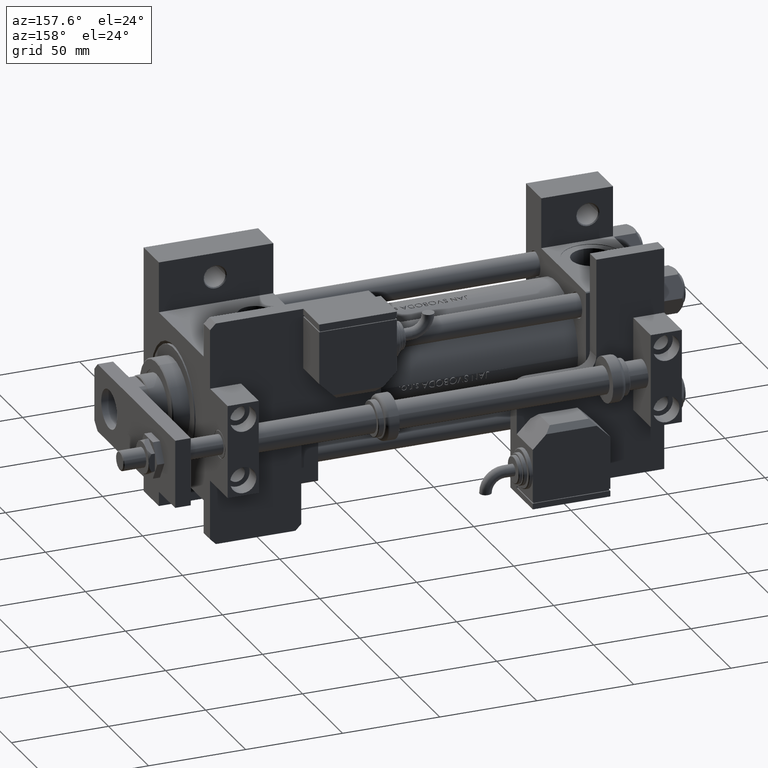
[diagram: clean part render]
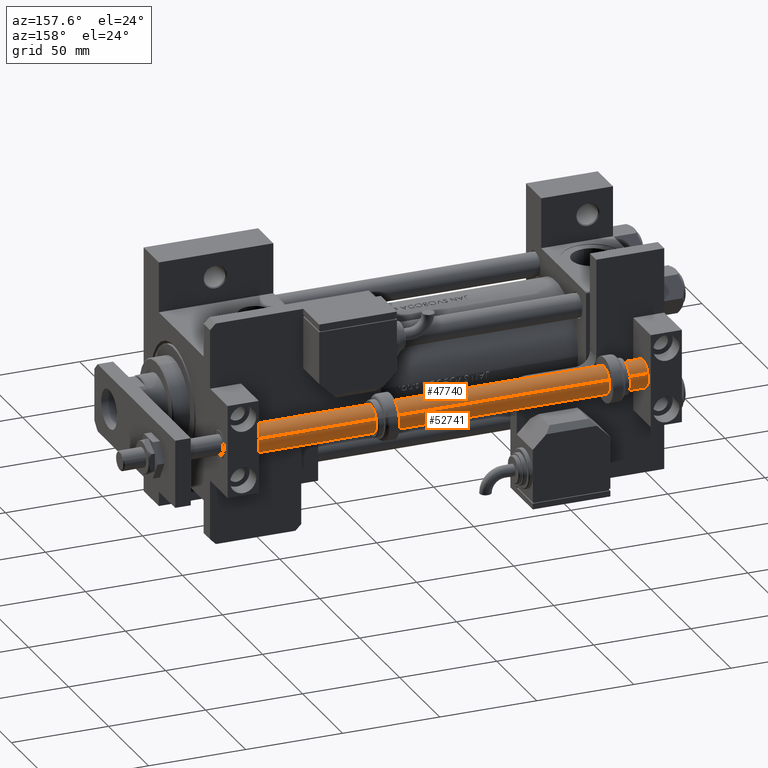
[diagram: same view with one multi-face feature highlighted, each face labeled with its STEP entity id]
A machine part, auxiliary view. The highlighted faces form ONE feature: a constant-radius fillet chain: 2 tangent blend faces with common blend radius 7 mm. The faces share edges in the B-rep.
Their STEP definitions:
[1] entity #52741 (Cylinder):
#422 = VERTEX_POINT ( 'NONE', #30283 ) ;
#830 = VERTEX_POINT ( 'NONE', #24188 ) ;
#3577 = DIRECTION ( 'NONE',  ( -0.000000000000000000, -0.000000000000000000, 1.000000000000000000 ) ) ;
#8786 = DIRECTION ( 'NONE',  ( -0.000000000000000000, -0.000000000000000000, -1.000000000000000000 ) ) ;
#9573 = CYLINDRICAL_SURFACE ( 'NONE', #22005, 7.000000000000000000 ) ;
#15670 = DIRECTION ( 'NONE',  ( 0.000000000000000000, 0.000000000000000000, 1.000000000000000000 ) ) ;
#17568 = CIRCLE ( 'NONE', #42497, 7.000000000000000000 ) ;
#18562 = CARTESIAN_POINT ( 'NONE',  ( 7.000000000000000000, 8.572527594031473190E-16, 0.3000000000000224709 ) ) ;
#19101 = VECTOR ( 'NONE', #38247, 1000.000000000000000 ) ;
#19459 = DIRECTION ( 'NONE',  ( 1.000000000000000000, 0.000000000000000000, 0.000000000000000000 ) ) ;
#20527 = LINE ( 'NONE', #36932, #19101 ) ;
#22005 = AXIS2_PLACEMENT_3D ( 'NONE', #33827, #42179, #42979 ) ;
#22195 = VERTEX_POINT ( 'NONE', #51813 ) ;
#23551 = EDGE_CURVE ( 'NONE', #22195, #830, #17568, .T. ) ;
#24188 = CARTESIAN_POINT ( 'NONE',  ( -7.000000000000000000, 0.000000000000000000, 234.0000000000000000 ) ) ;
#24612 = EDGE_CURVE ( 'NONE', #22195, #42447, #20527, .T. ) ;
#24988 = LINE ( 'NONE', #29279, #43867 ) ;
#26128 = EDGE_CURVE ( 'NONE', #42447, #422, #26904, .T. ) ;
#26577 = FACE_OUTER_BOUND ( 'NONE', #26845, .T. ) ;
#26845 = EDGE_LOOP ( 'NONE', ( #43134, #37288, #27638, #33973 ) ) ;
#26904 = CIRCLE ( 'NONE', #47525, 7.000000000000000000 ) ;
#27638 = ORIENTED_EDGE ( 'NONE', *, *, #26128, .T. ) ;
#29279 = CARTESIAN_POINT ( 'NONE',  ( -7.000000000000000000, 0.000000000000000000, 234.0000000000000000 ) ) ;
#30283 = CARTESIAN_POINT ( 'NONE',  ( -7.000000000000000000, 0.000000000000000000, 0.3000000000000224709 ) ) ;
#31837 = CARTESIAN_POINT ( 'NONE',  ( 0.000000000000000000, 0.000000000000000000, 234.0000000000000000 ) ) ;
#33827 = CARTESIAN_POINT ( 'NONE',  ( 0.000000000000000000, 0.000000000000000000, 234.0000000000000000 ) ) ;
#33973 = ORIENTED_EDGE ( 'NONE', *, *, #48850, .F. ) ;
#36932 = CARTESIAN_POINT ( 'NONE',  ( 7.000000000000000000, 8.572527594031473190E-16, 234.0000000000000000 ) ) ;
#37288 = ORIENTED_EDGE ( 'NONE', *, *, #24612, .T. ) ;
#38247 = DIRECTION ( 'NONE',  ( -0.000000000000000000, -0.000000000000000000, -1.000000000000000000 ) ) ;
#42179 = DIRECTION ( 'NONE',  ( -0.000000000000000000, -0.000000000000000000, -1.000000000000000000 ) ) ;
#42447 = VERTEX_POINT ( 'NONE', #18562 ) ;
#42497 = AXIS2_PLACEMENT_3D ( 'NONE', #31837, #15670, #19459 ) ;
#42979 = DIRECTION ( 'NONE',  ( -1.000000000000000000, 0.000000000000000000, 0.000000000000000000 ) ) ;
#43134 = ORIENTED_EDGE ( 'NONE', *, *, #23551, .F. ) ;
#43867 = VECTOR ( 'NONE', #8786, 1000.000000000000000 ) ;
#44539 = CARTESIAN_POINT ( 'NONE',  ( 0.000000000000000000, 0.000000000000000000, 0.3000000000000224709 ) ) ;
#47525 = AXIS2_PLACEMENT_3D ( 'NONE', #44539, #3577, #52356 ) ;
#48850 = EDGE_CURVE ( 'NONE', #830, #422, #24988, .T. ) ;
#51813 = CARTESIAN_POINT ( 'NONE',  ( 7.000000000000000000, 8.572527594031473190E-16, 234.0000000000000000 ) ) ;
#52356 = DIRECTION ( 'NONE',  ( 1.000000000000000000, 0.000000000000000000, 0.000000000000000000 ) ) ;
#52741 = ADVANCED_FACE ( 'NONE', ( #26577 ), #9573, .T. ) ;
[2] entity #47740 (Cylinder):
#106 = EDGE_LOOP ( 'NONE', ( #31829, #48986, #19768, #17522 ) ) ;
#422 = VERTEX_POINT ( 'NONE', #30283 ) ;
#830 = VERTEX_POINT ( 'NONE', #24188 ) ;
#2648 = DIRECTION ( 'NONE',  ( 1.000000000000000000, 0.000000000000000000, 0.000000000000000000 ) ) ;
#5888 = CARTESIAN_POINT ( 'NONE',  ( 0.000000000000000000, 0.000000000000000000, 234.0000000000000000 ) ) ;
#8399 = DIRECTION ( 'NONE',  ( 1.000000000000000000, 0.000000000000000000, 0.000000000000000000 ) ) ;
#8786 = DIRECTION ( 'NONE',  ( -0.000000000000000000, -0.000000000000000000, -1.000000000000000000 ) ) ;
#8839 = CYLINDRICAL_SURFACE ( 'NONE', #28349, 7.000000000000000000 ) ;
#13152 = DIRECTION ( 'NONE',  ( -0.000000000000000000, -0.000000000000000000, -1.000000000000000000 ) ) ;
#17204 = DIRECTION ( 'NONE',  ( -1.000000000000000000, 0.000000000000000000, 0.000000000000000000 ) ) ;
#17468 = CARTESIAN_POINT ( 'NONE',  ( 0.000000000000000000, 0.000000000000000000, 234.0000000000000000 ) ) ;
#17522 = ORIENTED_EDGE ( 'NONE', *, *, #49466, .T. ) ;
#18562 = CARTESIAN_POINT ( 'NONE',  ( 7.000000000000000000, 8.572527594031473190E-16, 0.3000000000000224709 ) ) ;
#19101 = VECTOR ( 'NONE', #38247, 1000.000000000000000 ) ;
#19485 = DIRECTION ( 'NONE',  ( -0.000000000000000000, -0.000000000000000000, 1.000000000000000000 ) ) ;
#19768 = ORIENTED_EDGE ( 'NONE', *, *, #48850, .T. ) ;
#20527 = LINE ( 'NONE', #36932, #19101 ) ;
#22195 = VERTEX_POINT ( 'NONE', #51813 ) ;
#22486 = EDGE_CURVE ( 'NONE', #830, #22195, #52779, .T. ) ;
#24188 = CARTESIAN_POINT ( 'NONE',  ( -7.000000000000000000, 0.000000000000000000, 234.0000000000000000 ) ) ;
#24612 = EDGE_CURVE ( 'NONE', #22195, #42447, #20527, .T. ) ;
#24859 = CARTESIAN_POINT ( 'NONE',  ( 0.000000000000000000, 0.000000000000000000, 0.3000000000000224709 ) ) ;
#24988 = LINE ( 'NONE', #29279, #43867 ) ;
#28349 = AXIS2_PLACEMENT_3D ( 'NONE', #17468, #13152, #17204 ) ;
#29279 = CARTESIAN_POINT ( 'NONE',  ( -7.000000000000000000, 0.000000000000000000, 234.0000000000000000 ) ) ;
#30283 = CARTESIAN_POINT ( 'NONE',  ( -7.000000000000000000, 0.000000000000000000, 0.3000000000000224709 ) ) ;
#30635 = FACE_OUTER_BOUND ( 'NONE', #106, .T. ) ;
#31829 = ORIENTED_EDGE ( 'NONE', *, *, #24612, .F. ) ;
#36932 = CARTESIAN_POINT ( 'NONE',  ( 7.000000000000000000, 8.572527594031473190E-16, 234.0000000000000000 ) ) ;
#38247 = DIRECTION ( 'NONE',  ( -0.000000000000000000, -0.000000000000000000, -1.000000000000000000 ) ) ;
#42447 = VERTEX_POINT ( 'NONE', #18562 ) ;
#43867 = VECTOR ( 'NONE', #8786, 1000.000000000000000 ) ;
#43884 = DIRECTION ( 'NONE',  ( 0.000000000000000000, 0.000000000000000000, 1.000000000000000000 ) ) ;
#44751 = AXIS2_PLACEMENT_3D ( 'NONE', #24859, #19485, #8399 ) ;
#46772 = AXIS2_PLACEMENT_3D ( 'NONE', #5888, #43884, #2648 ) ;
#47740 = ADVANCED_FACE ( 'NONE', ( #30635 ), #8839, .T. ) ;
#48850 = EDGE_CURVE ( 'NONE', #830, #422, #24988, .T. ) ;
#48986 = ORIENTED_EDGE ( 'NONE', *, *, #22486, .F. ) ;
#49466 = EDGE_CURVE ( 'NONE', #422, #42447, #52520, .T. ) ;
#51813 = CARTESIAN_POINT ( 'NONE',  ( 7.000000000000000000, 8.572527594031473190E-16, 234.0000000000000000 ) ) ;
#52520 = CIRCLE ( 'NONE', #44751, 7.000000000000000000 ) ;
#52779 = CIRCLE ( 'NONE', #46772, 7.000000000000000000 ) ;